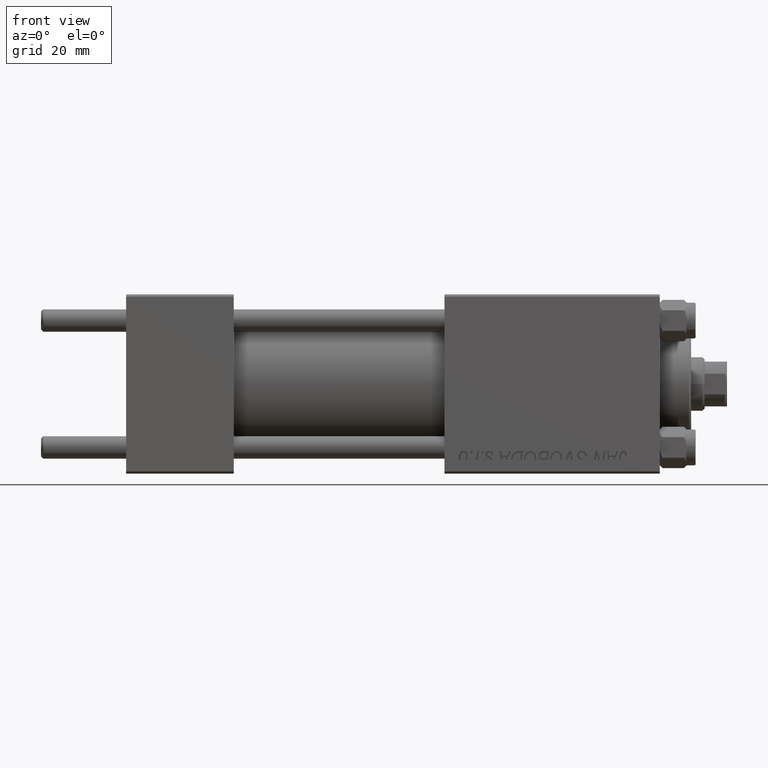
[diagram: clean part render]
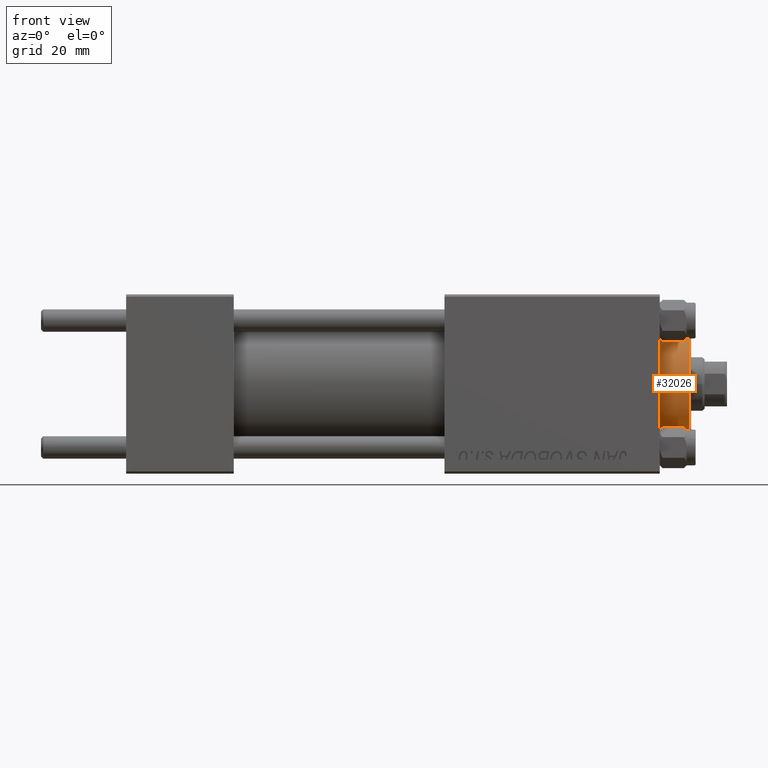
[diagram: same view with one face highlighted and labeled with its STEP entity id]
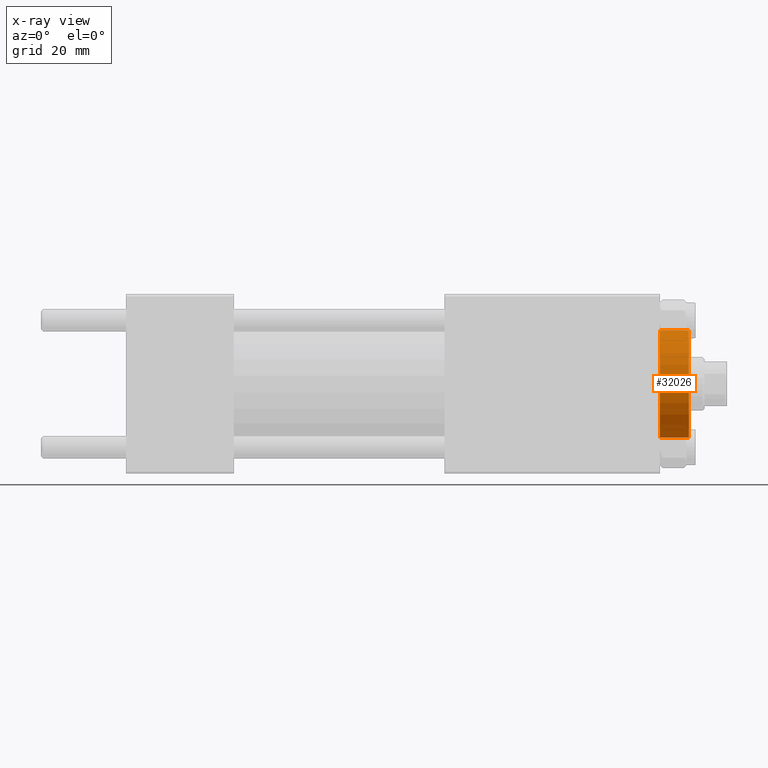
[diagram: x-ray of the same camera — body ghosted, the highlighted face saturated]
A machine part, front view. The second image highlights one B-rep face of the part: STEP entity #32026.
The next image is the same camera in x-ray: the body ghosted, the highlighted face saturated — about 0% of this face is hidden behind the body in this view.
In plain terms, the highlighted cylindrical surface (partial cylindrical patch) has radius 12 mm, axis along (-1, -0, 0).
Its self-contained STEP definition (entity closure, byte-faithful):
#248 = AXIS2_PLACEMENT_3D ( 'NONE', #35333, #827, #13131 ) ;
#529 = CIRCLE ( 'NONE', #32701, 12.00000000000000178 ) ;
#578 = EDGE_CURVE ( 'NONE', #18704, #11610, #45419, .T. ) ;
#827 = DIRECTION ( 'NONE',  ( -0.000000000000000000, -0.000000000000000000, -1.000000000000000000 ) ) ;
#3443 = DIRECTION ( 'NONE',  ( 0.000000000000000000, 0.000000000000000000, -1.000000000000000000 ) ) ;
#4194 = CARTESIAN_POINT ( 'NONE',  ( 0.000000000000000000, 0.000000000000000000, 35.19999999999999574 ) ) ;
#5090 = CARTESIAN_POINT ( 'NONE',  ( -12.00000000000000178, 0.000000000000000000, 28.69999999999999929 ) ) ;
#7654 = AXIS2_PLACEMENT_3D ( 'NONE', #28265, #37498, #28506 ) ;
#8697 = ORIENTED_EDGE ( 'NONE', *, *, #578, .T. ) ;
#11610 = VERTEX_POINT ( 'NONE', #20665 ) ;
#12344 = EDGE_LOOP ( 'NONE', ( #49242, #28811, #48738, #8697 ) ) ;
#13131 = DIRECTION ( 'NONE',  ( -1.000000000000000000, 0.000000000000000000, 0.000000000000000000 ) ) ;
#18704 = VERTEX_POINT ( 'NONE', #5090 ) ;
#20665 = CARTESIAN_POINT ( 'NONE',  ( 12.00000000000000178, 1.469576158976824144E-15, 28.69999999999999929 ) ) ;
#20879 = CARTESIAN_POINT ( 'NONE',  ( 12.00000000000000178, 1.469576158976824144E-15, 35.19999999999999574 ) ) ;
#23993 = CYLINDRICAL_SURFACE ( 'NONE', #248, 12.00000000000000178 ) ;
#27076 = VECTOR ( 'NONE', #46234, 1000.000000000000000 ) ;
#28265 = CARTESIAN_POINT ( 'NONE',  ( 0.000000000000000000, 0.000000000000000000, 28.69999999999999929 ) ) ;
#28506 = DIRECTION ( 'NONE',  ( 1.000000000000000000, 0.000000000000000000, 0.000000000000000000 ) ) ;
#28811 = ORIENTED_EDGE ( 'NONE', *, *, #46582, .T. ) ;
#32026 = ADVANCED_FACE ( 'NONE', ( #35076 ), #23993, .T. ) ;
#32361 = VERTEX_POINT ( 'NONE', #20879 ) ;
#32701 = AXIS2_PLACEMENT_3D ( 'NONE', #4194, #3443, #45986 ) ;
#32886 = VERTEX_POINT ( 'NONE', #37550 ) ;
#35076 = FACE_OUTER_BOUND ( 'NONE', #12344, .T. ) ;
#35333 = CARTESIAN_POINT ( 'NONE',  ( 0.000000000000000000, 0.000000000000000000, 35.70000000000000284 ) ) ;
#36866 = EDGE_CURVE ( 'NONE', #32886, #18704, #37846, .T. ) ;
#37498 = DIRECTION ( 'NONE',  ( 0.000000000000000000, 0.000000000000000000, 1.000000000000000000 ) ) ;
#37550 = CARTESIAN_POINT ( 'NONE',  ( -12.00000000000000178, 0.000000000000000000, 35.19999999999999574 ) ) ;
#37846 = LINE ( 'NONE', #44397, #46256 ) ;
#37940 = CARTESIAN_POINT ( 'NONE',  ( 12.00000000000000178, 1.469576158976824144E-15, 35.70000000000000284 ) ) ;
#44397 = CARTESIAN_POINT ( 'NONE',  ( -12.00000000000000178, 0.000000000000000000, 35.70000000000000284 ) ) ;
#45419 = CIRCLE ( 'NONE', #7654, 12.00000000000000178 ) ;
#45485 = LINE ( 'NONE', #37940, #27076 ) ;
#45986 = DIRECTION ( 'NONE',  ( 1.000000000000000000, 0.000000000000000000, 0.000000000000000000 ) ) ;
#46234 = DIRECTION ( 'NONE',  ( -0.000000000000000000, -0.000000000000000000, -1.000000000000000000 ) ) ;
#46256 = VECTOR ( 'NONE', #48669, 1000.000000000000000 ) ;
#46582 = EDGE_CURVE ( 'NONE', #32361, #32886, #529, .T. ) ;
#46591 = EDGE_CURVE ( 'NONE', #32361, #11610, #45485, .T. ) ;
#48669 = DIRECTION ( 'NONE',  ( -0.000000000000000000, -0.000000000000000000, -1.000000000000000000 ) ) ;
#48738 = ORIENTED_EDGE ( 'NONE', *, *, #36866, .T. ) ;
#49242 = ORIENTED_EDGE ( 'NONE', *, *, #46591, .F. ) ;